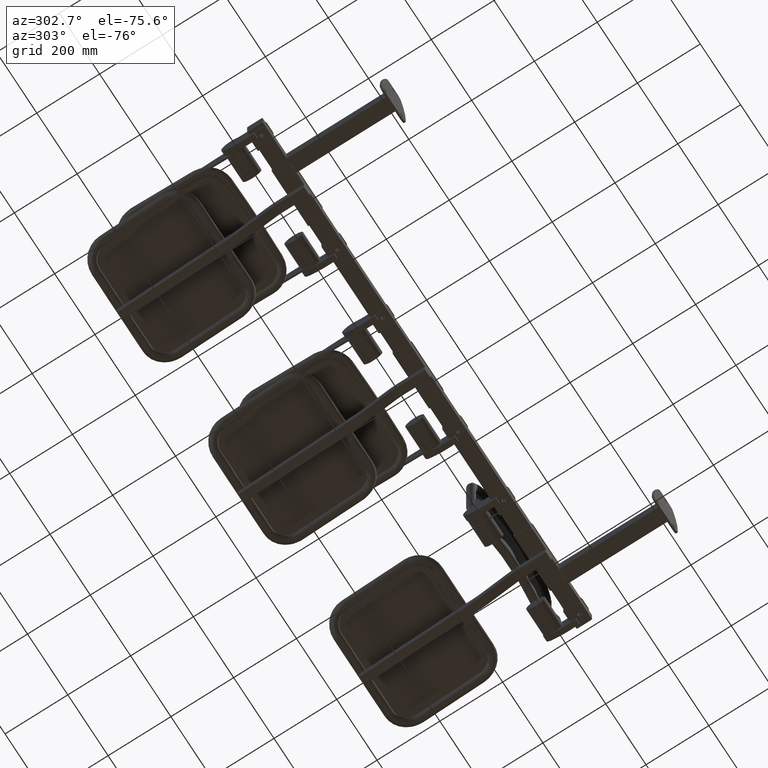
[diagram: clean part render]
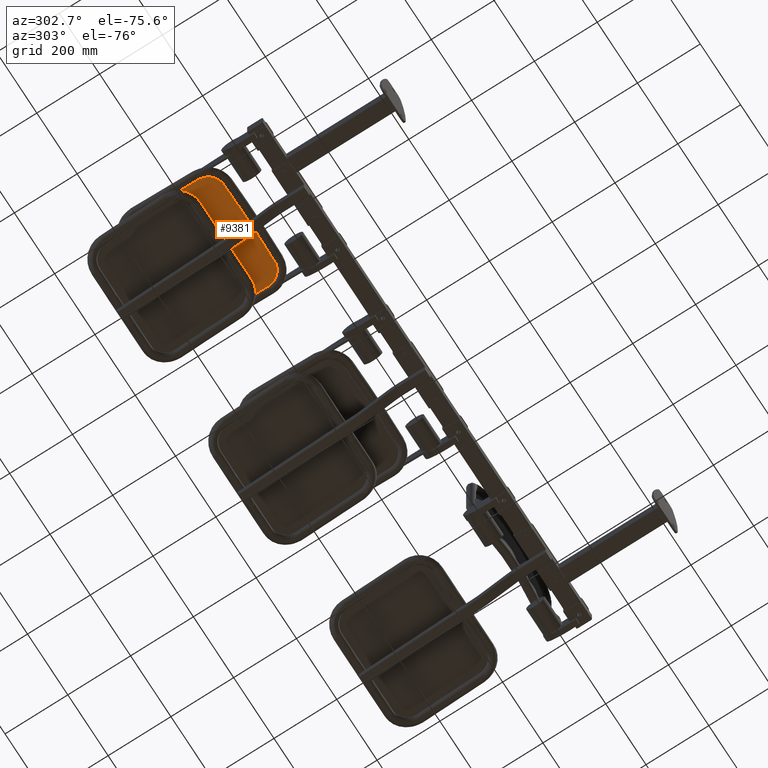
[diagram: same view with one face highlighted and labeled with its STEP entity id]
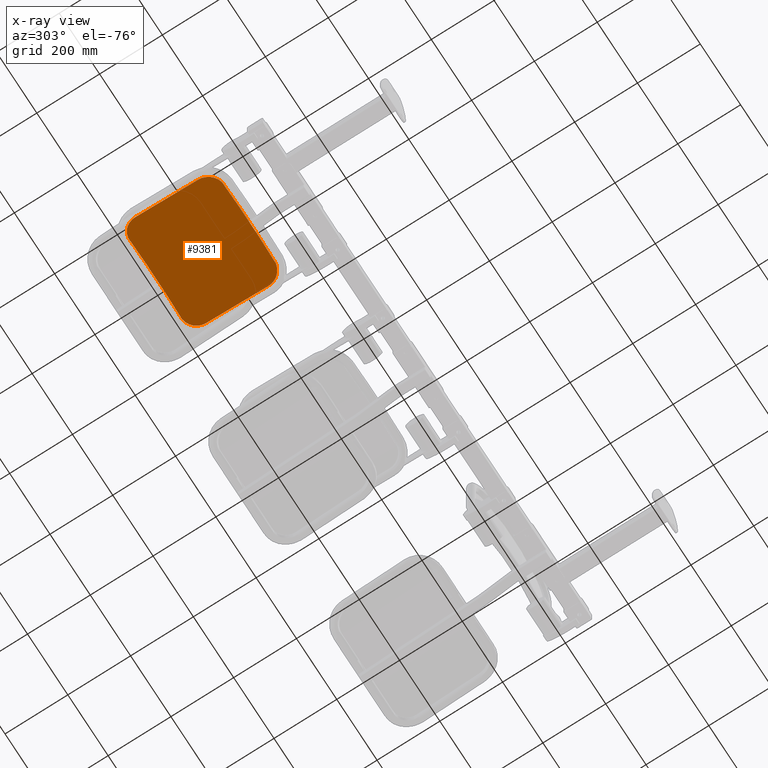
[diagram: x-ray of the same camera — body ghosted, the highlighted face saturated]
A machine part, auxiliary view. The second image highlights one B-rep face of the part: STEP entity #9381.
The next image is the same camera in x-ray: the body ghosted, the highlighted face saturated — about 0% of this face is hidden behind the body in this view.
In plain terms, the highlighted cylindrical surface (partial cylindrical patch) has radius 922 mm, axis along (0, -0.9962, -0.0872).
Its self-contained STEP definition (entity closure, byte-faithful):
#1660 = CARTESIAN_POINT ( 'NONE',  ( -174.6780423094293200, 2.938127989232763900, 99.99999999999964500 ) ) ;
#2761 = ORIENTED_EDGE ( 'NONE', *, *, #12065, .T. ) ;
#2762 = ORIENTED_EDGE ( 'NONE', *, *, #12060, .T. ) ;
#2763 = ORIENTED_EDGE ( 'NONE', *, *, #12139, .F. ) ;
#2764 = ORIENTED_EDGE ( 'NONE', *, *, #12068, .T. ) ;
#2765 = ORIENTED_EDGE ( 'NONE', *, *, #12076, .T. ) ;
#2766 = ORIENTED_EDGE ( 'NONE', *, *, #12132, .T. ) ;
#2767 = ORIENTED_EDGE ( 'NONE', *, *, #12138, .T. ) ;
#2768 = ORIENTED_EDGE ( 'NONE', *, *, #12072, .T. ) ;
#2894 = VERTEX_POINT ( 'NONE', #13494 ) ;
#3079 = AXIS2_PLACEMENT_3D ( 'NONE', #3797, #3798, #3793 ) ;
#3793 = DIRECTION ( 'NONE',  ( -1.000000000000000000, 0.0000000000000000000, 0.0000000000000000000 ) ) ;
#3797 = CARTESIAN_POINT ( 'NONE',  ( 0.0000000000000000000, 908.2400563727661600, 150.0000000000009100 ) ) ;
#3798 = DIRECTION ( 'NONE',  ( 0.0000000000000000000, -1.526556658859582100E-016, -1.000000000000000000 ) ) ;
#4761 = CARTESIAN_POINT ( 'NONE',  ( 174.6780423094294300, 2.938127989232708300, 99.99999999999953100 ) ) ;
#4825 = CARTESIAN_POINT ( 'NONE',  ( -133.5027708095150300, -4.043348160158277700, -150.0000000000006800 ) ) ;
#5012 = CARTESIAN_POINT ( 'NONE',  ( -174.6780423094277000, 2.938127989229211100, -100.0000000000006400 ) ) ;
#5029 = CARTESIAN_POINT ( 'NONE',  ( 133.5027708095076900, -4.043348160161164300, 150.0000000000011400 ) ) ;
#5209 = CARTESIAN_POINT ( 'NONE',  ( 174.6780423094277000, 2.938127989229155600, -100.0000000000006400 ) ) ;
#5219 = CARTESIAN_POINT ( 'NONE',  ( 133.5027708095076700, -4.043348160161219300, -150.0000000000008000 ) ) ;
#9381 = ADVANCED_FACE ( 'NONE', ( #14500 ), #14502, .F. ) ;
#10707 = B_SPLINE_CURVE_WITH_KNOTS ( 'NONE', 3,
 ( #10986, #10985, #10952, #10987, #10988, #10989, #10990, #10991, #10992, #10993, #10994, #10995, #10996, #10997, #10998, #10999, #11000, #11001, #11002, #11003, #11004, #11005, #11006, #11007, #11008, #11009, #11010, #11011, #11012, #11013, #11014, #11015 ),
 .UNSPECIFIED., .F., .F.,
 ( 4, 2, 2, 2, 2, 2, 2, 2, 2, 2, 2, 2, 2, 2, 2, 4 ),
 ( 3.927108981965571900E-016, 0.008803417324603638300, 0.01320512598690526200, 0.01540598031805608500, 0.01760683464920690500, 0.02641025197381028900, 0.03081196063611203700, 0.03301281496726291700, 0.03521366929841379000, 0.04401708662301714900, 0.04841879528531882500, 0.05061964961646960700, 0.05282050394762038300, 0.06162392127222338100, 0.06602562993452486300, 0.07042733859682633000 ),
 .UNSPECIFIED. ) ;
#10711 = B_SPLINE_CURVE_WITH_KNOTS ( 'NONE', 3,
 ( #11045, #11039, #11038, #11047, #11048, #11049, #11050, #11051, #11052, #11053, #11054, #11055, #11056, #11057, #11058, #11059, #11060, #11061, #11062, #11063, #11064, #11065, #11066, #11067, #11068, #11069, #11070, #11071, #11072, #11073, #11074, #11075 ),
 .UNSPECIFIED., .F., .F.,
 ( 4, 2, 2, 2, 2, 2, 2, 2, 2, 2, 2, 2, 2, 2, 2, 4 ),
 ( 8.490610432780445200E-015, 0.008802556550107077500, 0.01320383482515631600, 0.01540447396268091900, 0.01760511310020552000, 0.02640766965030399600, 0.03080894792535321000, 0.03300958706287784900, 0.03521022620040248400, 0.04401278275050067600, 0.04841406102554975800, 0.05281533930059883300, 0.06161789585069704600, 0.06601917412574616300, 0.06821981326327072900, 0.07042045240079529400 ),
 .UNSPECIFIED. ) ;
#10713 = B_SPLINE_CURVE_WITH_KNOTS ( 'NONE', 3,
 ( #11090, #11085, #11086, #11091, #11092, #11093, #11094, #11095, #11096, #11097, #11098, #11099, #11100, #11101, #11102, #11103, #11104, #11105, #11106, #11107, #11108, #11109, #11110, #11111, #11112, #11113, #11114, #11115, #11116, #11117, #11118, #11119 ),
 .UNSPECIFIED., .F., .F.,
 ( 4, 2, 2, 2, 2, 2, 2, 2, 2, 2, 2, 2, 2, 2, 2, 4 ),
 ( 7.191307624979042700E-016, 0.008802556550099788200, 0.01320383482514933700, 0.01540447396267416400, 0.01760511310019899400, 0.02640766965029834800, 0.03080894792534802700, 0.03300958706287289400, 0.03521022620039776500, 0.04401278275049724800, 0.04841406102554694800, 0.05281533930059666100, 0.06161789585069606100, 0.06601917412574573300, 0.06821981326327060400, 0.07042045240079546100 ),
 .UNSPECIFIED. ) ;
#10952 = CARTESIAN_POINT ( 'NONE',  ( 174.4252569109683600, 2.889249156998614100, -105.9095809351525800 ) ) ;
#10985 = CARTESIAN_POINT ( 'NONE',  ( 174.6780423094293400, 2.938127989232758500, -102.9767111702003300 ) ) ;
#10986 = CARTESIAN_POINT ( 'NONE',  ( 174.6780423094277000, 2.938127989229155600, -100.0000000000006400 ) ) ;
#10987 = CARTESIAN_POINT ( 'NONE',  ( 173.6823065029256800, 2.746533479588012300, -110.2458254922054700 ) ) ;
#10988 = CARTESIAN_POINT ( 'NONE',  ( 173.3736626402036300, 2.687343729855665100, -111.6806676315724900 ) ) ;
#10989 = CARTESIAN_POINT ( 'NONE',  ( 172.8179272435427000, 2.581180420402647600, -113.8168594006257500 ) ) ;
#10990 = CARTESIAN_POINT ( 'NONE',  ( 172.6171985542208600, 2.542893235743395300, -114.5262409831934200 ) ) ;
#10991 = CARTESIAN_POINT ( 'NONE',  ( 172.1842845498672100, 2.460491188604760500, -115.9395566754926500 ) ) ;
#10992 = CARTESIAN_POINT ( 'NONE',  ( 171.9515861540678800, 2.416279086561620400, -116.6449153591410800 ) ) ;
#10993 = CARTESIAN_POINT ( 'NONE',  ( 170.7138823299349300, 2.181677444012671600, -120.1406797326996200 ) ) ;
#10994 = CARTESIAN_POINT ( 'NONE',  ( 169.4991983137301200, 1.953047274788549200, -122.8105190491354400 ) ) ;
#10995 = CARTESIAN_POINT ( 'NONE',  ( 167.3512060475762300, 1.554827582415562600, -126.6316484380890200 ) ) ;
#10996 = CARTESIAN_POINT ( 'NONE',  ( 166.5805605887737200, 1.412827841485951000, -127.8745735445698800 ) ) ;
#10997 = CARTESIAN_POINT ( 'NONE',  ( 165.3411140186350700, 1.186313528371743900, -129.6919993142212500 ) ) ;
#10998 = CARTESIAN_POINT ( 'NONE',  ( 164.9140322696743500, 1.108553735962660500, -130.2899698321682000 ) ) ;
#10999 = CARTESIAN_POINT ( 'NONE',  ( 164.0315003009442000, 0.9485552417517187900, -131.4699633020646000 ) ) ;
#11000 = CARTESIAN_POINT ( 'NONE',  ( 163.5748653853533500, 0.8661043752965139600, -132.0533764078755300 ) ) ;
#11001 = CARTESIAN_POINT ( 'NONE',  ( 161.2387529999136000, 0.4462085634092661800, -134.9061564388820200 ) ) ;
#11002 = CARTESIAN_POINT ( 'NONE',  ( 159.1978465308782800, 0.08529606656785965200, -136.9917475094736700 ) ) ;
#11003 = CARTESIAN_POINT ( 'NONE',  ( 155.8851279581338400, -0.4871208554685738700, -139.8338622777744700 ) ) ;
#11004 = CARTESIAN_POINT ( 'NONE',  ( 154.7387530509504100, -0.6831380520262230200, -140.7332446702127100 ) ) ;
#11005 = CARTESIAN_POINT ( 'NONE',  ( 152.9546340337426500, -0.9844723836828785900, -142.0089234182700600 ) ) ;
#11006 = CARTESIAN_POINT ( 'NONE',  ( 152.3491529466001900, -1.086137138707724500, -142.4218997634158400 ) ) ;
#11007 = CARTESIAN_POINT ( 'NONE',  ( 151.1162202790398200, -1.291844430163192600, -143.2228952222707800 ) ) ;
#11008 = CARTESIAN_POINT ( 'NONE',  ( 150.4883261064792400, -1.395955851070872900, -143.6110605275205800 ) ) ;
#11009 = CARTESIAN_POINT ( 'NONE',  ( 147.3253740385162600, -1.916968884658950300, -145.4697822865383000 ) ) ;
#11010 = CARTESIAN_POINT ( 'NONE',  ( 144.6960490761459000, -2.339245843045442400, -146.7123967559655000 ) ) ;
#11011 = CARTESIAN_POINT ( 'NONE',  ( 140.6068619629391500, -2.976500450832765000, -148.2193977601147900 ) ) ;
#11012 = CARTESIAN_POINT ( 'NONE',  ( 139.2194630377408900, -3.189579564210903500, -148.6619021253000900 ) ) ;
#11013 = CARTESIAN_POINT ( 'NONE',  ( 136.3948739619446800, -3.616554344967616500, -149.4247097407218500 ) ) ;
#11014 = CARTESIAN_POINT ( 'NONE',  ( 134.9540972695986600, -3.830962291024134100, -149.7453999577494100 ) ) ;
#11015 = CARTESIAN_POINT ( 'NONE',  ( 133.5027708095076700, -4.043348160161219300, -150.0000000000008000 ) ) ;
#11034 = CARTESIAN_POINT ( 'NONE',  ( 174.6780423094276400, 2.938127989229155600, -1.110223024625156500E-013 ) ) ;
#11037 = DIRECTION ( 'NONE',  ( 0.0000000000000000000, -1.526556658859582100E-016, -1.000000000000000000 ) ) ;
#11038 = CARTESIAN_POINT ( 'NONE',  ( -139.2157402112297000, -3.193201298295981400, -148.7300908071791800 ) ) ;
#11039 = CARTESIAN_POINT ( 'NONE',  ( -136.4044524121476600, -3.618718563662593800, -149.4909703096126100 ) ) ;
#11045 = CARTESIAN_POINT ( 'NONE',  ( -133.5027708095150300, -4.043348160158277700, -150.0000000000006800 ) ) ;
#11047 = CARTESIAN_POINT ( 'NONE',  ( -143.3031395745491900, -2.556359719182766300, -147.2267049283009900 ) ) ;
#11048 = CARTESIAN_POINT ( 'NONE',  ( -144.6438899564403800, -2.344332376842478600, -146.6648703919838100 ) ) ;
#11049 = CARTESIAN_POINT ( 'NONE',  ( -146.6220860598244300, -2.027162559961644700, -145.7298554267855800 ) ) ;
#11050 = CARTESIAN_POINT ( 'NONE',  ( -147.2759889221209700, -1.921585602899141800, -145.4027849053086100 ) ) ;
#11051 = CARTESIAN_POINT ( 'NONE',  ( -148.5726483527034000, -1.710821201562987300, -144.7173727561188900 ) ) ;
#11052 = CARTESIAN_POINT ( 'NONE',  ( -149.2169678934313600, -1.605374842079485100, -144.3580730241744700 ) ) ;
#11053 = CARTESIAN_POINT ( 'NONE',  ( -152.3844638327490500, -1.083632167134347000, -142.4972107034075500 ) ) ;
#11054 = CARTESIAN_POINT ( 'NONE',  ( -154.7532591195759700, -0.6826354278430695200, -140.8022876210281400 ) ) ;
#11055 = CARTESIAN_POINT ( 'NONE',  ( -158.0685886014811700, -0.1098646472582932900, -137.9618855153424900 ) ) ;
#11056 = CARTESIAN_POINT ( 'NONE',  ( -159.1338203578420400, 0.07624399679575856500, -136.9651220025059800 ) ) ;
#11057 = CARTESIAN_POINT ( 'NONE',  ( -160.6710205796733200, 0.3473898815004483600, -135.3938462974315100 ) ) ;
#11058 = CARTESIAN_POINT ( 'NONE',  ( -161.1732984616819800, 0.4364335548345320000, -134.8573813391303400 ) ) ;
#11059 = CARTESIAN_POINT ( 'NONE',  ( -162.1572907833166300, 0.6116837531158445500, -133.7586132477194100 ) ) ;
#11060 = CARTESIAN_POINT ( 'NONE',  ( -162.6382829059241700, 0.6977635892752275200, -133.1969790404449400 ) ) ;
#11061 = CARTESIAN_POINT ( 'NONE',  ( -164.9687295435140600, 1.116632361651013900, -130.3517139942916300 ) ) ;
#11062 = CARTESIAN_POINT ( 'NONE',  ( -166.6149145823605100, 1.418353854522515600, -127.9372995264758700 ) ) ;
#11063 = CARTESIAN_POINT ( 'NONE',  ( -168.7673811361676100, 1.817360527012971800, -124.1144138570346500 ) ) ;
#11064 = CARTESIAN_POINT ( 'NONE',  ( -169.4317598822119600, 1.941394612186053500, -122.8063802993805400 ) ) ;
#11065 = CARTESIAN_POINT ( 'NONE',  ( -170.6523357711535600, 2.170431089117570000, -120.1215041083189300 ) ) ;
#11066 = CARTESIAN_POINT ( 'NONE',  ( -171.2095691463158900, 2.275633990470080600, -118.7401357903840600 ) ) ;
#11067 = CARTESIAN_POINT ( 'NONE',  ( -172.6868317126447900, 2.555639529864326900, -114.5693454951733400 ) ) ;
#11068 = CARTESIAN_POINT ( 'NONE',  ( -173.4255939864386300, 2.697224416704872700, -111.7314858990518300 ) ) ;
#11069 = CARTESIAN_POINT ( 'NONE',  ( -174.1725968260295500, 2.840713097095747500, -107.3904394198569300 ) ) ;
#11070 = CARTESIAN_POINT ( 'NONE',  ( -174.3610627241992300, 2.877015158258917600, -105.9293014465067100 ) ) ;
#11071 = CARTESIAN_POINT ( 'NONE',  ( -174.5507831765801500, 2.913580320996308300, -103.7158953305186900 ) ) ;
#11072 = CARTESIAN_POINT ( 'NONE',  ( -174.5985353192885700, 2.922790154325231700, -102.9733979338759200 ) ) ;
#11073 = CARTESIAN_POINT ( 'NONE',  ( -174.6621354910551000, 2.935058333665204100, -101.4874028404087800 ) ) ;
#11074 = CARTESIAN_POINT ( 'NONE',  ( -174.6780423094276700, 2.938127989229098800, -100.7439361827921700 ) ) ;
#11075 = CARTESIAN_POINT ( 'NONE',  ( -174.6780423094277000, 2.938127989229211100, -100.0000000000006400 ) ) ;
#11085 = CARTESIAN_POINT ( 'NONE',  ( 136.4044524121482600, -3.618718563662432200, 149.4909703096123800 ) ) ;
#11086 = CARTESIAN_POINT ( 'NONE',  ( 139.2157402112229400, -3.193201298296938400, 148.7300908071800100 ) ) ;
#11090 = CARTESIAN_POINT ( 'NONE',  ( 133.5027708095076900, -4.043348160161164300, 150.0000000000011400 ) ) ;
#11091 = CARTESIAN_POINT ( 'NONE',  ( 143.3031395745431400, -2.556359719183662400, 147.2267049283022400 ) ) ;
#11092 = CARTESIAN_POINT ( 'NONE',  ( 144.6438899564345200, -2.344332376843423700, 146.6648703919851800 ) ) ;
#11093 = CARTESIAN_POINT ( 'NONE',  ( 146.6220860598188300, -2.027162559962561800, 145.7298554267871100 ) ) ;
#11094 = CARTESIAN_POINT ( 'NONE',  ( 147.2759889221154000, -1.921585602900020200, 145.4027849053101400 ) ) ;
#11095 = CARTESIAN_POINT ( 'NONE',  ( 148.5726483526980800, -1.710821201563848900, 144.7173727561205400 ) ) ;
#11096 = CARTESIAN_POINT ( 'NONE',  ( 149.2169678934259600, -1.605374842080351500, 144.3580730241760900 ) ) ;
#11097 = CARTESIAN_POINT ( 'NONE',  ( 152.3844638327443300, -1.083632167135132800, 142.4972107034092500 ) ) ;
#11098 = CARTESIAN_POINT ( 'NONE',  ( 154.7532591195717100, -0.6826354278437244400, 140.8022876210300200 ) ) ;
#11099 = CARTESIAN_POINT ( 'NONE',  ( 158.0685886014775900, -0.1098646472588744600, 137.9618855153445900 ) ) ;
#11100 = CARTESIAN_POINT ( 'NONE',  ( 159.1338203578386300, 0.07624399679510823800, 136.9651220025080000 ) ) ;
#11101 = CARTESIAN_POINT ( 'NONE',  ( 160.6710205796701100, 0.3473898814998289700, 135.3938462974334400 ) ) ;
#11102 = CARTESIAN_POINT ( 'NONE',  ( 161.1732984616788800, 0.4364335548338373900, 134.8573813391322700 ) ) ;
#11103 = CARTESIAN_POINT ( 'NONE',  ( 162.1572907833136400, 0.6116837531151699800, 133.7586132477214300 ) ) ;
#11104 = CARTESIAN_POINT ( 'NONE',  ( 162.6382829059211300, 0.6977635892746605300, 133.1969790404469900 ) ) ;
#11105 = CARTESIAN_POINT ( 'NONE',  ( 164.9687295435115600, 1.116632361650541600, 130.3517139942934200 ) ) ;
#11106 = CARTESIAN_POINT ( 'NONE',  ( 166.6149145823585200, 1.418353854522276900, 127.9372995264775000 ) ) ;
#11107 = CARTESIAN_POINT ( 'NONE',  ( 168.7673811361661100, 1.817360527012800200, 124.1144138570359100 ) ) ;
#11108 = CARTESIAN_POINT ( 'NONE',  ( 169.4317598822104000, 1.941394612185764100, 122.8063802993816000 ) ) ;
#11109 = CARTESIAN_POINT ( 'NONE',  ( 170.6523357711522000, 2.170431089117312000, 120.1215041083197700 ) ) ;
#11110 = CARTESIAN_POINT ( 'NONE',  ( 171.2095691463146600, 2.275633990469843500, 118.7401357903850100 ) ) ;
#11111 = CARTESIAN_POINT ( 'NONE',  ( 172.6868317126439400, 2.555639529864144300, 114.5693454951737200 ) ) ;
#11112 = CARTESIAN_POINT ( 'NONE',  ( 173.4255939864380600, 2.697224416704721200, 111.7314858990519000 ) ) ;
#11113 = CARTESIAN_POINT ( 'NONE',  ( 174.1725968260290600, 2.840713097095611600, 107.3904394198566300 ) ) ;
#11114 = CARTESIAN_POINT ( 'NONE',  ( 174.3610627241989200, 2.877015158258894500, 105.9293014465062700 ) ) ;
#11115 = CARTESIAN_POINT ( 'NONE',  ( 174.5507831765797000, 2.913580320996284300, 103.7158953305180900 ) ) ;
#11116 = CARTESIAN_POINT ( 'NONE',  ( 174.5985353192880600, 2.922790154325065600, 102.9733979338752500 ) ) ;
#11117 = CARTESIAN_POINT ( 'NONE',  ( 174.6621354910546700, 2.935058333665038900, 101.4874028404079000 ) ) ;
#11118 = CARTESIAN_POINT ( 'NONE',  ( 174.6780423094276400, 2.938127989229213800, 100.7439361827914300 ) ) ;
#11119 = CARTESIAN_POINT ( 'NONE',  ( 174.6780423094294300, 2.938127989232708300, 99.99999999999953100 ) ) ;
#11120 = CARTESIAN_POINT ( 'NONE',  ( -174.6780423094276400, 2.938127989229155600, -1.110223024625156500E-013 ) ) ;
#11162 = DIRECTION ( 'NONE',  ( -0.0000000000000000000, 1.526556658859582100E-016, 1.000000000000000000 ) ) ;
#12060 = EDGE_CURVE ( 'NONE', #14783, #14788, #10707, .T. ) ;
#12065 = EDGE_CURVE ( 'NONE', #13777, #14783, #13249, .T. ) ;
#12068 = EDGE_CURVE ( 'NONE', #13841, #14595, #10711, .T. ) ;
#12072 = EDGE_CURVE ( 'NONE', #14612, #13777, #10713, .T. ) ;
#12076 = EDGE_CURVE ( 'NONE', #14595, #15367, #13258, .T. ) ;
#12132 = EDGE_CURVE ( 'NONE', #15367, #2894, #15711, .T. ) ;
#12138 = EDGE_CURVE ( 'NONE', #2894, #14612, #13312, .T. ) ;
#12139 = EDGE_CURVE ( 'NONE', #13841, #14788, #13308, .T. ) ;
#12677 = EDGE_LOOP ( 'NONE', ( #2761, #2762, #2763, #2764, #2765, #2766, #2767, #2768 ) ) ;
#13249 = LINE ( 'NONE', #11034, #13251 ) ;
#13251 = VECTOR ( 'NONE', #11037, 1000.000000000000000 ) ;
#13256 = VECTOR ( 'NONE', #11162, 1000.000000000000000 ) ;
#13258 = LINE ( 'NONE', #11120, #13256 ) ;
#13308 = CIRCLE ( 'NONE', #13619, 921.9999999999998900 ) ;
#13312 = CIRCLE ( 'NONE', #13618, 921.9999999999998900 ) ;
#13494 = CARTESIAN_POINT ( 'NONE',  ( -133.5027708095146900, -4.043348160158388700, 150.0000000000006800 ) ) ;
#13618 = AXIS2_PLACEMENT_3D ( 'NONE', #16199, #16200, #16201 ) ;
#13619 = AXIS2_PLACEMENT_3D ( 'NONE', #16203, #16204, #16205 ) ;
#13777 = VERTEX_POINT ( 'NONE', #4761 ) ;
#13841 = VERTEX_POINT ( 'NONE', #4825 ) ;
#14500 = FACE_OUTER_BOUND ( 'NONE', #12677, .T. ) ;
#14502 = CYLINDRICAL_SURFACE ( 'NONE', #3079, 921.9999999999998900 ) ;
#14595 = VERTEX_POINT ( 'NONE', #5012 ) ;
#14612 = VERTEX_POINT ( 'NONE', #5029 ) ;
#14783 = VERTEX_POINT ( 'NONE', #5209 ) ;
#14788 = VERTEX_POINT ( 'NONE', #5219 ) ;
#15367 = VERTEX_POINT ( 'NONE', #1660 ) ;
#15711 = B_SPLINE_CURVE_WITH_KNOTS ( 'NONE', 3,
 ( #16085, #16086, #16091, #16092, #16093, #16094, #16095, #16096, #16097, #16098, #16099, #16100, #16101, #16102, #16103, #16104, #16105, #16106, #16107, #16108, #16109, #16110, #16111, #16112, #16113, #16114, #16115, #16116, #16117, #16118, #16119, #16120 ),
 .UNSPECIFIED., .F., .F.,
 ( 4, 2, 2, 2, 2, 2, 2, 2, 2, 2, 2, 2, 2, 2, 2, 4 ),
 ( 0.0000000000000000000, 0.008803417324602559300, 0.01320512598690381900, 0.01540598031805442600, 0.01760683464920503500, 0.02641025197380756500, 0.03081196063610882100, 0.03301281496725945500, 0.03521366929841008400, 0.04401708662301250700, 0.04841879528531369700, 0.05061964961646431300, 0.05282050394761492900, 0.06162392127221739300, 0.06602562993451857600, 0.07042733859681975200 ),
 .UNSPECIFIED. ) ;
#16085 = CARTESIAN_POINT ( 'NONE',  ( -174.6780423094293200, 2.938127989232763900, 99.99999999999964500 ) ) ;
#16086 = CARTESIAN_POINT ( 'NONE',  ( -174.6780423094294000, 2.938127989232771400, 102.9767111701990800 ) ) ;
#16091 = CARTESIAN_POINT ( 'NONE',  ( -174.4252569109681900, 2.889249156998671400, 105.9095809351506000 ) ) ;
#16092 = CARTESIAN_POINT ( 'NONE',  ( -173.6823065029257400, 2.746533479588116700, 110.2458254922031200 ) ) ;
#16093 = CARTESIAN_POINT ( 'NONE',  ( -173.3736626402035500, 2.687343729855631700, 111.6806676315699500 ) ) ;
#16094 = CARTESIAN_POINT ( 'NONE',  ( -172.8179272435427300, 2.581180420402644100, 113.8168594006230200 ) ) ;
#16095 = CARTESIAN_POINT ( 'NONE',  ( -172.6171985542209200, 2.542893235743402400, 114.5262409831906500 ) ) ;
#16096 = CARTESIAN_POINT ( 'NONE',  ( -172.1842845498673900, 2.460491188604791500, 115.9395566754898100 ) ) ;
#16097 = CARTESIAN_POINT ( 'NONE',  ( -171.9515861540680800, 2.416279086561550700, 116.6449153591379300 ) ) ;
#16098 = CARTESIAN_POINT ( 'NONE',  ( -170.7138823299353300, 2.181677444012662300, 120.1406797326963000 ) ) ;
#16099 = CARTESIAN_POINT ( 'NONE',  ( -169.4991983137309400, 1.953047274788779900, 122.8105190491319800 ) ) ;
#16100 = CARTESIAN_POINT ( 'NONE',  ( -167.3512060475773900, 1.554827582415880400, 126.6316484380852500 ) ) ;
#16101 = CARTESIAN_POINT ( 'NONE',  ( -166.5805605887751100, 1.412827841486307800, 127.8745735445661900 ) ) ;
#16102 = CARTESIAN_POINT ( 'NONE',  ( -165.3411140186366900, 1.186313528372150000, 129.6919993142174700 ) ) ;
#16103 = CARTESIAN_POINT ( 'NONE',  ( -164.9140322696758600, 1.108553735962841000, 130.2899698321641300 ) ) ;
#16104 = CARTESIAN_POINT ( 'NONE',  ( -164.0315003009458200, 0.9485552417519346200, 131.4699633020605100 ) ) ;
#16105 = CARTESIAN_POINT ( 'NONE',  ( -163.5748653853553400, 0.8661043752968901100, 132.0533764078713500 ) ) ;
#16106 = CARTESIAN_POINT ( 'NONE',  ( -161.2387529999159300, 0.4462085634097184300, 134.9061564388778200 ) ) ;
#16107 = CARTESIAN_POINT ( 'NONE',  ( -159.1978465308809500, 0.08529606656833210700, 136.9917475094694600 ) ) ;
#16108 = CARTESIAN_POINT ( 'NONE',  ( -155.8851279581371300, -0.4871208554680094300, 139.8338622777703200 ) ) ;
#16109 = CARTESIAN_POINT ( 'NONE',  ( -154.7387530509537900, -0.6831380520256071800, 140.7332446702086500 ) ) ;
#16110 = CARTESIAN_POINT ( 'NONE',  ( -152.9546340337462900, -0.9844723836822150100, 142.0089234182660800 ) ) ;
#16111 = CARTESIAN_POINT ( 'NONE',  ( -152.3491529466038800, -1.086137138707158600, 142.4218997634117400 ) ) ;
#16112 = CARTESIAN_POINT ( 'NONE',  ( -151.1162202790437200, -1.291844430162594600, 143.2228952222666900 ) ) ;
#16113 = CARTESIAN_POINT ( 'NONE',  ( -150.4883261064835800, -1.395955851070091100, 143.6110605275164900 ) ) ;
#16114 = CARTESIAN_POINT ( 'NONE',  ( -147.3253740385210900, -1.916968884658103000, 145.4697822865345000 ) ) ;
#16115 = CARTESIAN_POINT ( 'NONE',  ( -144.6960490761510400, -2.339245843044542200, 146.7123967559620300 ) ) ;
#16116 = CARTESIAN_POINT ( 'NONE',  ( -140.6068619629449500, -2.976500450831791600, 148.2193977601116300 ) ) ;
#16117 = CARTESIAN_POINT ( 'NONE',  ( -139.2194630377467800, -3.189579564210117000, 148.6619021252968800 ) ) ;
#16118 = CARTESIAN_POINT ( 'NONE',  ( -136.3948739619509900, -3.616554344966782500, 149.4247097407190100 ) ) ;
#16119 = CARTESIAN_POINT ( 'NONE',  ( -134.9540972695989800, -3.830962291023983600, 149.7453999577490400 ) ) ;
#16120 = CARTESIAN_POINT ( 'NONE',  ( -133.5027708095146900, -4.043348160158388700, 150.0000000000006800 ) ) ;
#16199 = CARTESIAN_POINT ( 'NONE',  ( 0.0000000000000000000, 908.2400563727661600, 150.0000000000009100 ) ) ;
#16200 = DIRECTION ( 'NONE',  ( 0.0000000000000000000, 1.526556658859582100E-016, 1.000000000000000000 ) ) ;
#16201 = DIRECTION ( 'NONE',  ( 1.000000000000000000, 0.0000000000000000000, 0.0000000000000000000 ) ) ;
#16203 = CARTESIAN_POINT ( 'NONE',  ( 0.0000000000000000000, 908.2400563727673000, -150.0000000000006800 ) ) ;
#16204 = DIRECTION ( 'NONE',  ( 0.0000000000000000000, 1.526556658859582100E-016, 1.000000000000000000 ) ) ;
#16205 = DIRECTION ( 'NONE',  ( 1.000000000000000000, 0.0000000000000000000, 0.0000000000000000000 ) ) ;